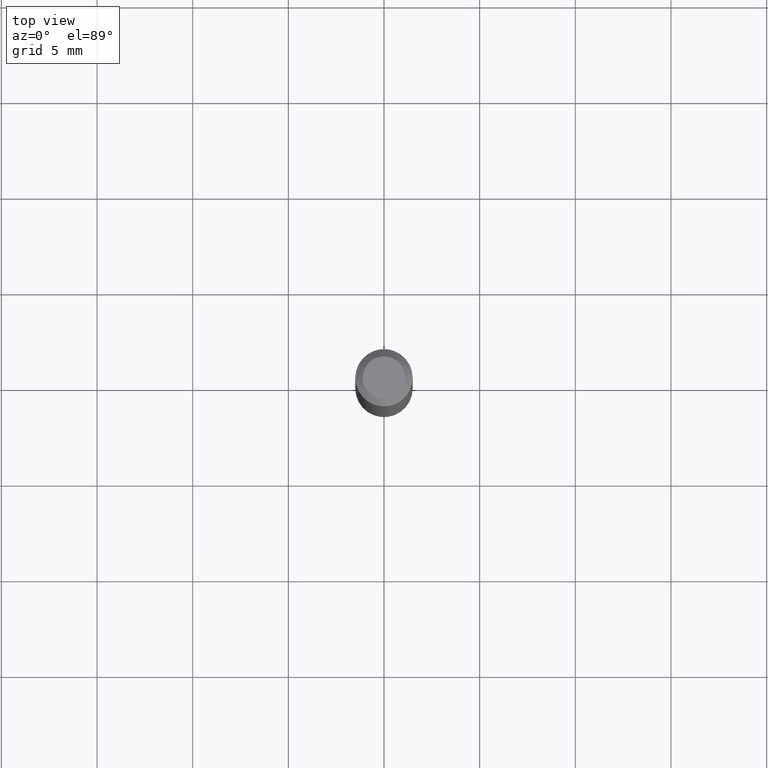
[diagram: clean part render]
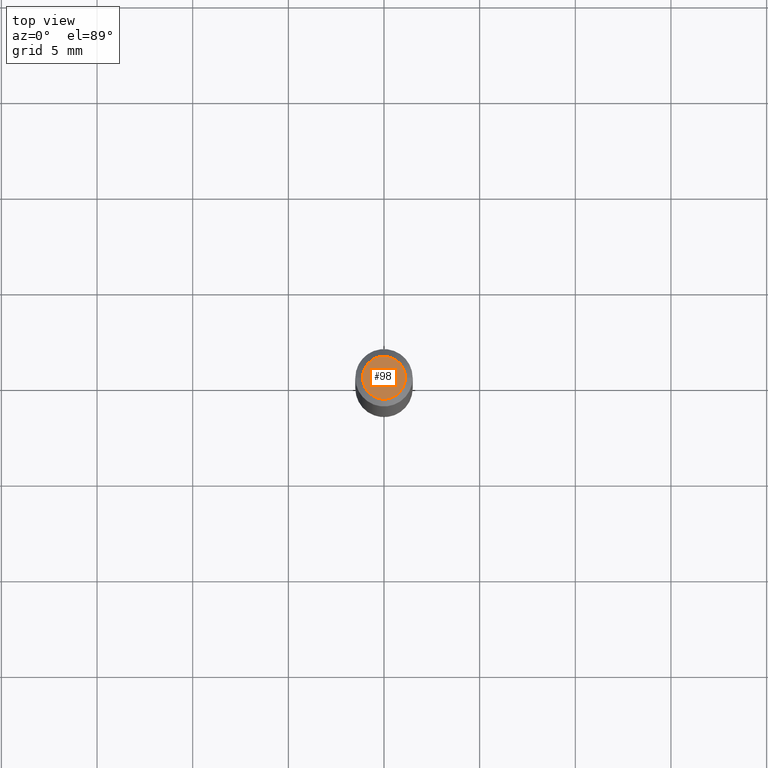
[diagram: same view with one face highlighted and labeled with its STEP entity id]
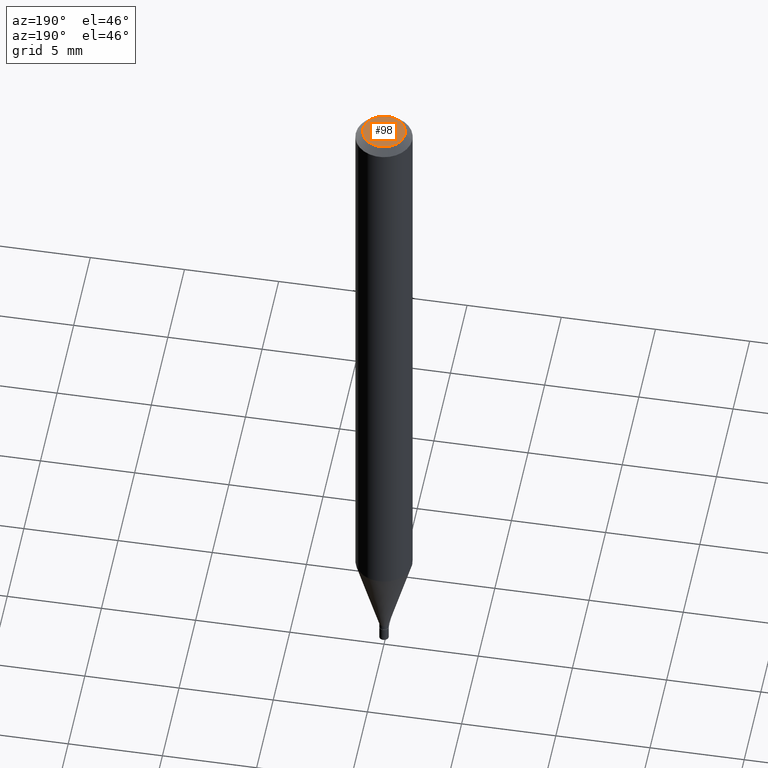
[diagram: same view with one face highlighted and labeled with its STEP entity id]
A machine part, top view. The second image highlights one B-rep face of the part: STEP entity #98.
A second angle (auxiliary view) of the same face is appended — the face is thin or edge-on in the first view.
In plain terms, the highlighted planar face has unit normal (0, -0, -1).
Its self-contained STEP definition (entity closure, byte-faithful):
#3 = DIRECTION ( 'NONE',  ( 2.438088387897960049E-29, -3.491481338843145188E-15, -1.000000000000000000 ) ) ;
#10 = ORIENTED_EDGE ( 'NONE', *, *, #57, .T. ) ;
#37 = CIRCLE ( 'NONE', #433, 0.04404999999999999888 ) ;
#43 = CARTESIAN_POINT ( 'NONE',  ( 3.075995059520799729E-16, 0.04404999999999999888, 1.795592642476908520E-18 ) ) ;
#50 = DIRECTION ( 'NONE',  ( -2.445468806185136597E-29, 3.491481338843145583E-15, 1.000000000000000000 ) ) ;
#57 = EDGE_CURVE ( 'NONE', #105, #462, #214, .T. ) ;
#63 = CARTESIAN_POINT ( 'NONE',  ( 0.04404999999999999888, -3.798447818264454656E-16, 3.111906912370373467E-16 ) ) ;
#98 = ADVANCED_FACE ( 'NONE', ( #411 ), #147, .F. ) ;
#105 = VERTEX_POINT ( 'NONE', #336 ) ;
#147 = PLANE ( 'NONE',  #324 ) ;
#149 = DIRECTION ( 'NONE',  ( -1.000000000000000000, 6.982962677686265922E-15, -4.876176775795935793E-29 ) ) ;
#182 = AXIS2_PLACEMENT_3D ( 'NONE', #188, #194, #439 ) ;
#188 = CARTESIAN_POINT ( 'NONE',  ( -7.610071281953593191E-45, 1.086516491275806664E-30, 3.111906912370349308E-16 ) ) ;
#194 = DIRECTION ( 'NONE',  ( -2.445468806185136597E-29, 3.491481338843145583E-15, 1.000000000000000000 ) ) ;
#196 = EDGE_CURVE ( 'NONE', #462, #105, #37, .T. ) ;
#214 = CIRCLE ( 'NONE', #182, 0.04404999999999999888 ) ;
#324 = AXIS2_PLACEMENT_3D ( 'NONE', #43, #3, #149 ) ;
#336 = CARTESIAN_POINT ( 'NONE',  ( -0.04404999999999999888, 3.337856159934040055E-16, 3.111906912370327122E-16 ) ) ;
#346 = CARTESIAN_POINT ( 'NONE',  ( -7.610071281953593191E-45, 1.086516491275806664E-30, 3.111906912370349308E-16 ) ) ;
#347 = EDGE_LOOP ( 'NONE', ( #10, #463 ) ) ;
#411 = FACE_OUTER_BOUND ( 'NONE', #347, .T. ) ;
#413 = DIRECTION ( 'NONE',  ( 1.000000000000000000, -6.982962677686265922E-15, 4.819687581474398999E-29 ) ) ;
#433 = AXIS2_PLACEMENT_3D ( 'NONE', #346, #50, #413 ) ;
#439 = DIRECTION ( 'NONE',  ( 1.000000000000000000, -6.982962677686265922E-15, 4.819687581474398999E-29 ) ) ;
#462 = VERTEX_POINT ( 'NONE', #63 ) ;
#463 = ORIENTED_EDGE ( 'NONE', *, *, #196, .T. ) ;